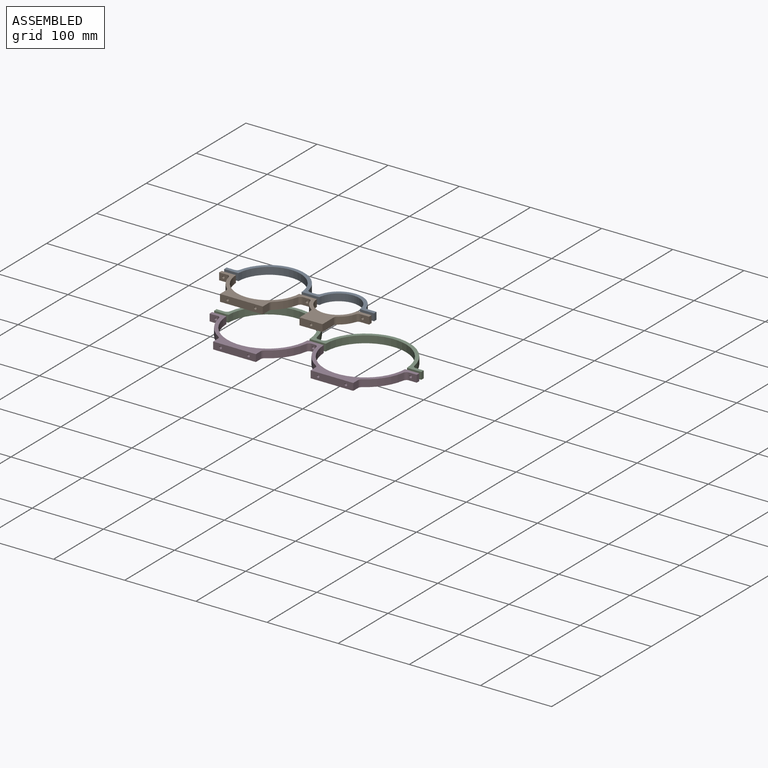
[diagram: assembled view]
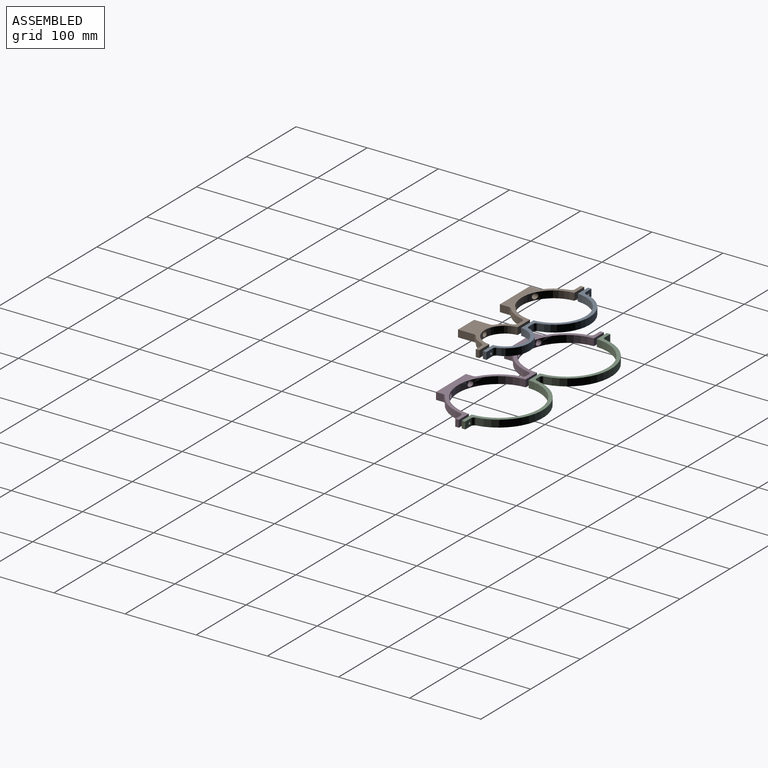
[diagram: assembled view, second angle]
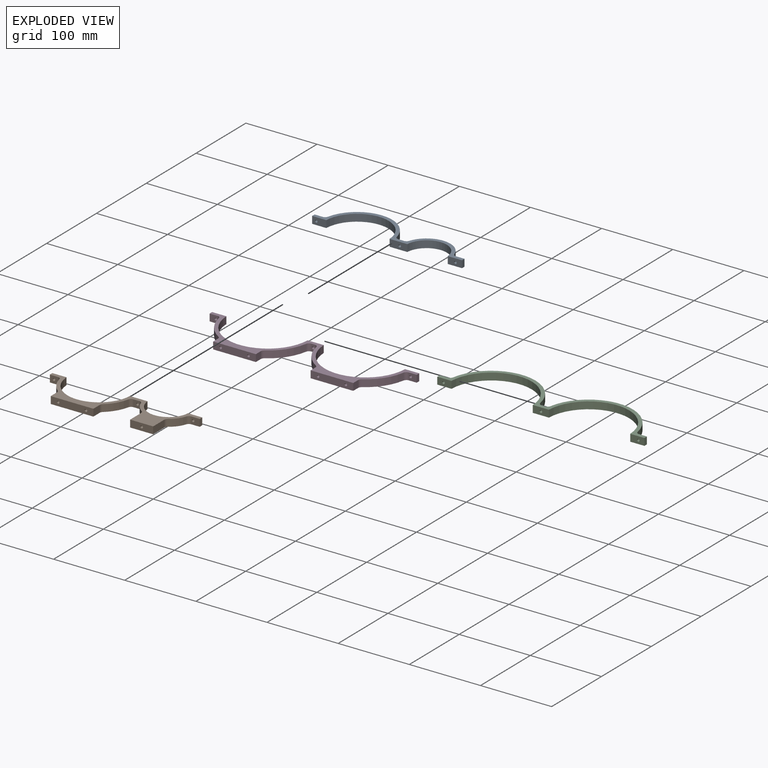
[diagram: exploded view]
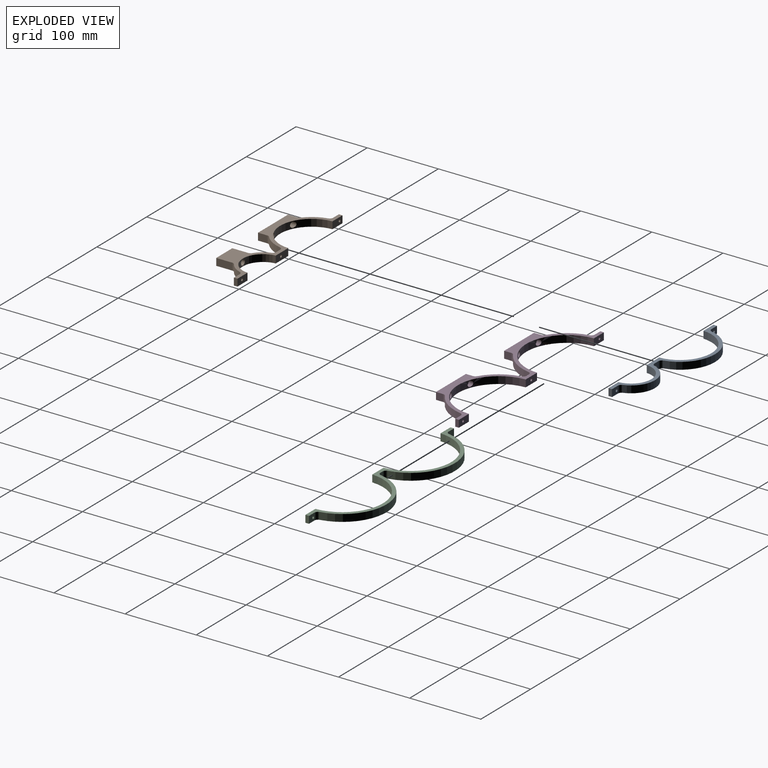
[diagram: exploded view, second angle]
ASSEMBLY  parts=4 mates=2
PART A: 22 faces, bbox 210.7x47.5x10 mm
  f0: plane 10x8.06mm, normal (0,1,0), area 70.7mm2, adj f7,f8,f10,f12,f13,f20
  f1: cylinder r=44.5mm len=88.91mm, axis (0,0,-1), area 1358mm2, adj f2,f6,f7,f8
  f2: plane 24.92x10mm, normal (0,-1,0), area 239.3mm2, adj f1,f7,f8,f10,f13,f16
  f3: cylinder r=49.5mm len=96.57mm, axis (0,0,-1), area 1335.3mm2, adj f7,f8,f11,f12
  f4: plane 11.29x10mm, normal (0,1,0), area 103mm2, adj f5,f7,f8,f9,f11
  f5: plane 10x5mm, normal (-1,0,0), area 50mm2, adj f4,f6,f7,f8
  f6: plane 20x10mm, normal (0,-1,0), area 190.1mm2, adj f1,f5,f7,f8,f9
  f7: plane 210.68x47.5mm, normal (0,0,1), area 1426.3mm2, adj f0,f1,f2,f3,f4,f5,f6,f11
  f8: plane 210.68x47.5mm, normal (0,0,-1), area 1426.3mm2, adj f0,f1,f2,f3,f4,f5,f6,f11
  f9: cylinder r=1.78mm len=5mm, axis (0,-1,0), area 55.9mm2, adj f4,f6
  f10: cylinder r=1.78mm len=5mm, axis (0,-1,0), area 27.9mm2, adj f0,f2,f13
  f11: cylinder r=5mm len=10mm, axis (0,0,-1), area 67.4mm2, adj f3,f4,f7,f8
  f12: cylinder r=5mm len=10mm, axis (0,0,-1), area 67.4mm2, adj f0,f3,f7,f8
  f13: cylinder r=1.78mm len=5mm, axis (0,-1,0), area 27.9mm2, adj f0,f2,f10
  f14: plane 11.85x10mm, normal (0,1,0), area 108.5mm2, adj f7,f8,f18,f19,f21
  f15: cylinder r=33.5mm len=63.66mm, axis (0,0,-1), area 840.1mm2, adj f7,f8,f20,f21
  f16: cylinder r=28.5mm len=56.86mm, axis (0,0,-1), area 855.3mm2, adj f2,f7,f8,f17
  f17: plane 20x10mm, normal (0,-1,0), area 190.1mm2, adj f7,f8,f16,f18,f19
  f18: plane 10x5mm, normal (1,0,0), area 50mm2, adj f7,f8,f14,f17
  f19: cylinder r=1.78mm len=5mm, axis (0,-1,0), area 55.9mm2, adj f14,f17
  f20: cylinder r=5mm len=10mm, axis (0,0,-1), area 62.7mm2, adj f0,f7,f8,f15
  f21: cylinder r=5mm len=10mm, axis (0,0,-1), area 62.7mm2, adj f7,f8,f14,f15
PART B: 43 faces, bbox 210.7x52.5x10 mm
  f0: plane 10x8.06mm, normal (0,1,0), area 70.7mm2, adj f1,f14,f20,f24,f25,f40
  f1: plane 210.68x52.5mm, normal (0,0,-1), area 2646.6mm2, adj f0,f4,f5,f6,f7,f8,f9,f10
  f2: cylinder r=3.81mm len=8.75mm, axis (0,-1,0), area 161.8mm2, adj f4,f16
  f3: cylinder r=3.81mm len=8.75mm, axis (0,-1,0), area 161.8mm2, adj f4,f18
  f4: cylinder r=44.5mm len=88.91mm, axis (0,0,-1), area 1256.4mm2, adj f1,f2,f3,f5,f13,f14
  f5: plane 24.92x10mm, normal (0,-1,0), area 239.3mm2, adj f1,f4,f14,f20,f25,f31
  f6: cylinder r=49.5mm len=27.04mm, axis (0,0,-1), area 322.5mm2, adj f1,f14,f21,f24
  f7: plane 12.72x10mm, normal (1,0,0), area 127.2mm2, adj f1,f8,f14,f21
  f8: plane 60x10mm, normal (0,1,0), area 580.1mm2, adj f1,f7,f9,f14,f15,f17
  f9: plane 12.72x10mm, normal (-1,0,0), area 127.2mm2, adj f1,f8,f14,f22
  f10: cylinder r=49.5mm len=27.04mm, axis (0,0,-1), area 322.5mm2, adj f1,f14,f22,f23
  f11: plane 11.29x10mm, normal (0,1,0), area 103mm2, adj f1,f12,f14,f19,f23
  f12: plane 10x5mm, normal (-1,0,0), area 50mm2, adj f1,f11,f13,f14
  f13: plane 20x10mm, normal (0,-1,0), area 190.1mm2, adj f1,f4,f12,f14,f19
  f14: plane 210.68x52.5mm, normal (0,0,1), area 2646.6mm2, adj f0,f4,f5,f6,f7,f8,f9,f10
  f15: cylinder r=1.78mm len=7.88mm, axis (0,-1,0), area 88.1mm2, adj f8,f16
  f16: plane 7.62x7.62mm, normal (0,-1,0), area 35.7mm2, adj f2,f15
  f17: cylinder r=1.78mm len=7.88mm, axis (0,-1,0), area 88.1mm2, adj f8,f18
  f18: plane 7.62x7.62mm, normal (0,-1,0), area 35.7mm2, adj f3,f17
  f19: cylinder r=1.78mm len=5mm, axis (0,-1,0), area 55.9mm2, adj f11,f13
  f20: cylinder r=1.78mm len=5mm, axis (0,-1,0), area 27.9mm2, adj f0,f5,f25
  f21: cylinder r=5mm len=10mm, axis (0,0,-1), area 43.7mm2, adj f1,f6,f7,f14
  f22: cylinder r=5mm len=10mm, axis (0,0,-1), area 43.7mm2, adj f1,f9,f10,f14
  f23: cylinder r=5mm len=10mm, axis (0,0,-1), area 67.4mm2, adj f1,f10,f11,f14
  f24: cylinder r=5mm len=10mm, axis (0,0,-1), area 67.4mm2, adj f0,f1,f6,f14
  f25: cylinder r=1.78mm len=5mm, axis (0,-1,0), area 27.9mm2, adj f0,f5,f20
  f26: cylinder r=3.81mm len=7.62mm, axis (0,-1,0), area 122mm2, adj f31,f36
  f27: cylinder r=33.5mm len=17.54mm, axis (0,0,-1), area 225mm2, adj f1,f14,f39,f41
  f28: plane 22.34x10mm, normal (1,0,0), area 223.4mm2, adj f1,f14,f39,f42
  f29: plane 22.34x10mm, normal (-1,0,0), area 223.4mm2, adj f1,f14,f38,f42
  f30: cylinder r=33.5mm len=17.54mm, axis (0,0,-1), area 225mm2, adj f1,f14,f38,f40
  f31: cylinder r=28.5mm len=56.86mm, axis (0,0,-1), area 809.5mm2, adj f1,f5,f14,f26,f32
  f32: plane 20x10mm, normal (0,-1,0), area 190.1mm2, adj f1,f14,f31,f33,f37
  f33: plane 10x5mm, normal (1,0,0), area 50mm2, adj f1,f14,f32,f34
  f34: plane 11.85x10mm, normal (0,1,0), area 108.5mm2, adj f1,f14,f33,f37,f41
  f35: cylinder r=1.78mm len=21.03mm, axis (0,-1,0), area 235mm2, adj f36,f42
  f36: plane 7.62x7.62mm, normal (0,-1,0), area 35.7mm2, adj f26,f35
  f37: cylinder r=1.78mm len=5mm, axis (0,-1,0), area 55.9mm2, adj f32,f34
  f38: cylinder r=5mm len=10mm, axis (0,0,-1), area 49.4mm2, adj f1,f14,f29,f30
  f39: cylinder r=5mm len=10mm, axis (0,0,-1), area 49.4mm2, adj f1,f14,f27,f28
  f40: cylinder r=5mm len=10mm, axis (0,0,-1), area 62.7mm2, adj f0,f1,f14,f30
  f41: cylinder r=5mm len=10mm, axis (0,0,-1), area 62.7mm2, adj f1,f14,f27,f34
  f42: plane 32.34x10mm, normal (0,1,0), area 313.5mm2, adj f1,f14,f28,f29,f35
PART C: 21 faces, bbox 291.1x60.2x10 mm
  f0: cylinder r=57.15mm len=114.23mm, axis (0,0,-1), area 1755.4mm2, adj f1,f6,f7,f8
  f1: plane 20x10mm, normal (0,-1,0), area 190.1mm2, adj f0,f2,f7,f8,f10
  f2: plane 10x5mm, normal (1,0,0), area 50mm2, adj f1,f3,f7,f8
  f3: plane 11.05x10mm, normal (0,1,0), area 100.5mm2, adj f2,f7,f8,f10,f12
  f4: cylinder r=62.15mm len=122.3mm, axis (0,0,-1), area 1729.2mm2, adj f7,f8,f11,f12
  f5: plane 10x4.76mm, normal (0,1,0), area 37.7mm2, adj f7,f8,f9,f11,f20
  f6: plane 22.67x10mm, normal (0,-1,0), area 216.8mm2, adj f0,f7,f8,f9,f13
  f7: plane 291.13x60.15mm, normal (0,0,1), area 2064.9mm2, adj f0,f1,f2,f3,f4,f5,f6,f11
  f8: plane 291.13x60.15mm, normal (0,0,-1), area 2064.9mm2, adj f0,f1,f2,f3,f4,f5,f6,f11
  f9: cylinder r=1.78mm len=5mm, axis (0,-1,0), area 55.9mm2, adj f5,f6
  f10: cylinder r=1.78mm len=5mm, axis (0,-1,0), area 55.9mm2, adj f1,f3
  f11: cylinder r=5mm len=10mm, axis (0,0,-1), area 69.6mm2, adj f4,f5,f7,f8
  f12: cylinder r=5mm len=10mm, axis (0,0,-1), area 69.6mm2, adj f3,f4,f7,f8
  f13: cylinder r=57.15mm len=114.23mm, axis (0,0,-1), area 1755.4mm2, adj f6,f7,f8,f17
  f14: cylinder r=62.15mm len=122.3mm, axis (0,0,-1), area 1729.2mm2, adj f7,f8,f19,f20
  f15: plane 11.05x10mm, normal (0,1,0), area 100.5mm2, adj f7,f8,f16,f18,f19
  f16: plane 10x5mm, normal (-1,0,0), area 50mm2, adj f7,f8,f15,f17
  f17: plane 20x10mm, normal (0,-1,0), area 190.1mm2, adj f7,f8,f13,f16,f18
  f18: cylinder r=1.78mm len=5mm, axis (0,-1,0), area 55.9mm2, adj f15,f17
  f19: cylinder r=5mm len=10mm, axis (0,0,-1), area 69.6mm2, adj f7,f8,f14,f15
  f20: cylinder r=5mm len=10mm, axis (0,0,-1), area 69.6mm2, adj f5,f7,f8,f14
PART D: 45 faces, bbox 291.1x65.2x10 mm
  f0: plane 291.13x65.15mm, normal (0,0,-1), area 2970.8mm2, adj f3,f4,f5,f6,f7,f8,f9,f10
  f1: cylinder r=3.81mm len=7.62mm, axis (0,-1,0), area 120.5mm2, adj f3,f16
  f2: cylinder r=3.81mm len=7.62mm, axis (0,-1,0), area 118.7mm2, adj f3,f18
  f3: cylinder r=57.15mm len=114.23mm, axis (0,0,-1), area 1658.3mm2, adj f0,f1,f2,f4,f13,f14
  f4: plane 20x10mm, normal (0,-1,0), area 190.1mm2, adj f0,f3,f5,f14,f20
  f5: plane 10x5mm, normal (1,0,0), area 50mm2, adj f0,f4,f6,f14
  f6: plane 11.05x10mm, normal (0,1,0), area 100.5mm2, adj f0,f5,f14,f20,f24
  f7: cylinder r=62.15mm len=41.93mm, axis (0,0,-1), area 523.8mm2, adj f0,f14,f21,f24
  f8: plane 10x9.84mm, normal (1,0,0), area 98.4mm2, adj f0,f9,f14,f21
  f9: plane 60x10mm, normal (0,1,0), area 580.1mm2, adj f0,f8,f10,f14,f15,f17
  f10: plane 10x9.84mm, normal (-1,0,0), area 98.4mm2, adj f0,f9,f14,f22
  f11: cylinder r=62.15mm len=41.93mm, axis (0,0,-1), area 523.8mm2, adj f0,f14,f22,f23
  f12: plane 10x4.76mm, normal (0,1,0), area 37.7mm2, adj f0,f14,f19,f23,f44
  f13: plane 22.67x10mm, normal (0,-1,0), area 216.8mm2, adj f0,f3,f14,f19,f27
  f14: plane 291.13x65.15mm, normal (0,0,1), area 2970.8mm2, adj f3,f4,f5,f6,f7,f8,f9,f10
  f15: cylinder r=1.78mm len=8.51mm, axis (0,-1,0), area 95mm2, adj f9,f16
  f16: plane 7.62x7.62mm, normal (0,-1,0), area 35.7mm2, adj f1,f15
  f17: cylinder r=1.78mm len=8.51mm, axis (0,-1,0), area 95mm2, adj f9,f18
  f18: plane 7.62x7.62mm, normal (0,-1,0), area 35.7mm2, adj f2,f17
  f19: cylinder r=1.78mm len=5mm, axis (0,-1,0), area 55.9mm2, adj f12,f13
  f20: cylinder r=1.78mm len=5mm, axis (0,-1,0), area 55.9mm2, adj f4,f6
  f21: cylinder r=5mm len=10mm, axis (0,0,-1), area 51.1mm2, adj f0,f7,f8,f14
  f22: cylinder r=5mm len=10mm, axis (0,0,-1), area 51.1mm2, adj f0,f10,f11,f14
  f23: cylinder r=5mm len=10mm, axis (0,0,-1), area 69.6mm2, adj f0,f11,f12,f14
  f24: cylinder r=5mm len=10mm, axis (0,0,-1), area 69.6mm2, adj f0,f6,f7,f14
  f25: cylinder r=3.81mm len=7.62mm, axis (0,-1,0), area 120.5mm2, adj f27,f37
  f26: cylinder r=3.81mm len=7.62mm, axis (0,-1,0), area 118.7mm2, adj f27,f39
  f27: cylinder r=57.15mm len=114.23mm, axis (0,0,-1), area 1658.3mm2, adj f0,f13,f14,f25,f26,f35
  f28: cylinder r=62.15mm len=41.93mm, axis (0,0,-1), area 523.8mm2, adj f0,f14,f41,f44
  f29: plane 10x9.84mm, normal (1,0,0), area 98.4mm2, adj f0,f14,f30,f41
  f30: plane 60x10mm, normal (0,1,0), area 580.1mm2, adj f0,f14,f29,f31,f36,f38
  f31: plane 10x9.84mm, normal (-1,0,0), area 98.4mm2, adj f0,f14,f30,f42
  f32: cylinder r=62.15mm len=41.93mm, axis (0,0,-1), area 523.8mm2, adj f0,f14,f42,f43
  f33: plane 11.05x10mm, normal (0,1,0), area 100.5mm2, adj f0,f14,f34,f40,f43
  f34: plane 10x5mm, normal (-1,0,0), area 50mm2, adj f0,f14,f33,f35
  f35: plane 20x10mm, normal (0,-1,0), area 190.1mm2, adj f0,f14,f27,f34,f40
  f36: cylinder r=1.78mm len=8.51mm, axis (0,-1,0), area 95mm2, adj f30,f37
  f37: plane 7.62x7.62mm, normal (0,-1,0), area 35.7mm2, adj f25,f36
  f38: cylinder r=1.78mm len=8.51mm, axis (0,-1,0), area 95mm2, adj f30,f39
  f39: plane 7.62x7.62mm, normal (0,-1,0), area 35.7mm2, adj f26,f38
  f40: cylinder r=1.78mm len=5mm, axis (0,-1,0), area 55.9mm2, adj f33,f35
  f41: cylinder r=5mm len=10mm, axis (0,0,-1), area 51.1mm2, adj f0,f14,f28,f29
  f42: cylinder r=5mm len=10mm, axis (0,0,-1), area 51.1mm2, adj f0,f14,f31,f32
  f43: cylinder r=5mm len=10mm, axis (0,0,-1), area 69.6mm2, adj f0,f14,f32,f33
  f44: cylinder r=5mm len=10mm, axis (0,0,-1), area 69.6mm2, adj f0,f12,f14,f28
PLACE A rot(axis=(0.17,0.99,0),0deg) t=(-31.9,20.81,8.13)mm
PLACE B rot(axis=(-1,0,0),180deg) t=(-31.89,19.81,17.69)mm
PLACE C rot(axis=(0.99,0.14,-0.01),0deg) t=(-41.21,31.98,-54.91)mm
PLACE D rot(axis=(-1,0,0),180deg) t=(-41.2,31.98,-45.12)mm
MATE fastened A.f13 <-> B.f20  axis (0,-1,0) through (26.79,22.81,12.91)mm
MATE fastened C.f6 <-> D.f19  axis (0,-1,0) through (27.24,33.98,-49.9)mm
